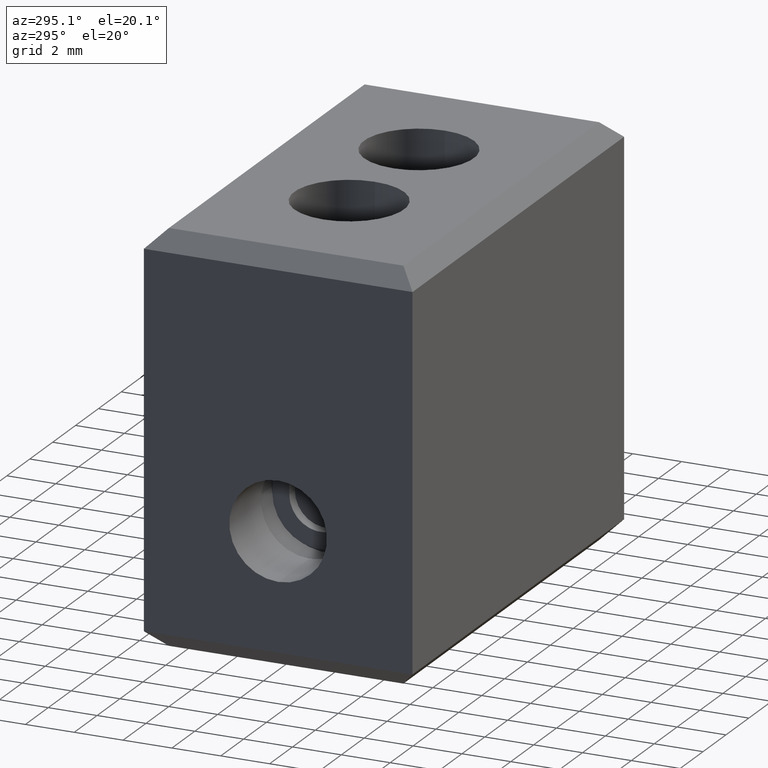
[diagram: clean part render]
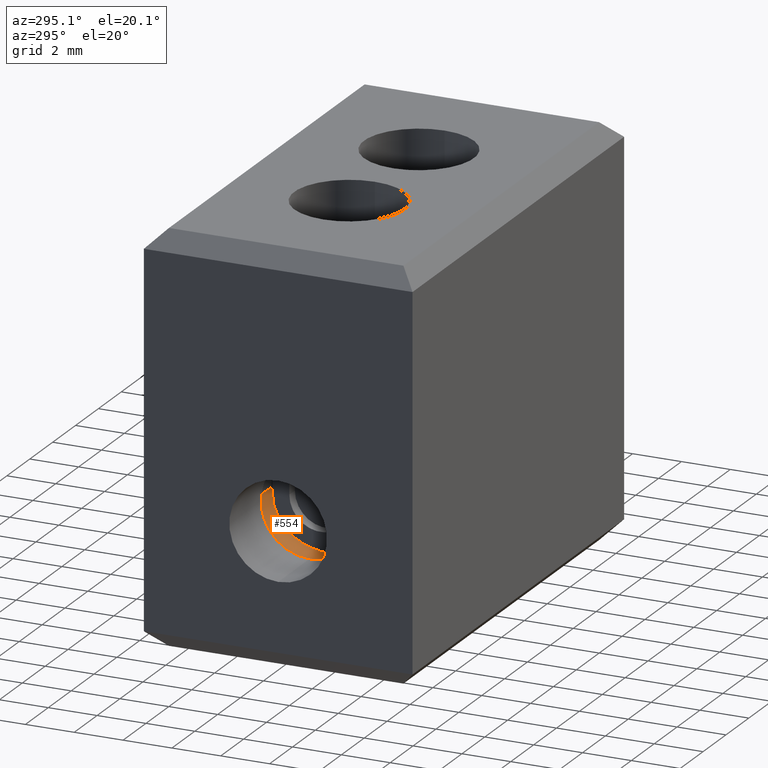
[diagram: same view with one face highlighted and labeled with its STEP entity id]
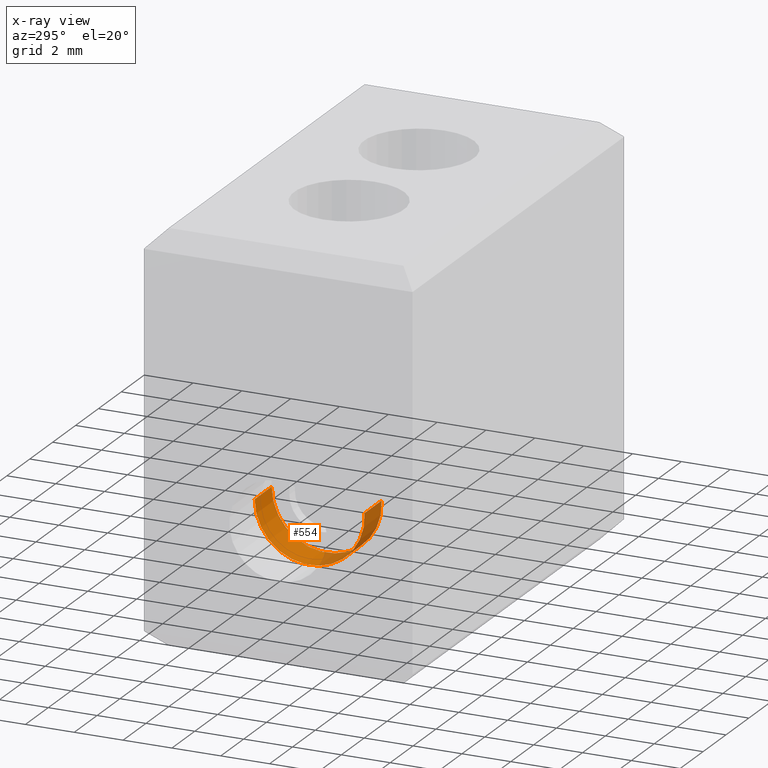
[diagram: x-ray of the same camera — body ghosted, the highlighted face saturated]
A machine part, auxiliary view. The second image highlights one B-rep face of the part: STEP entity #554.
The next image is the same camera in x-ray: the body ghosted, the highlighted face saturated — about 29% of this face is hidden behind the body in this view.
In plain terms, the highlighted cylindrical surface (partial cylindrical patch) has radius 2.2524 mm, axis along (-1, 0, 0).
Its self-contained STEP definition (entity closure, byte-faithful):
#31 = VERTEX_POINT ( 'NONE', #2143 ) ;
#36 = VERTEX_POINT ( 'NONE', #2187 ) ;
#113 = EDGE_LOOP ( 'NONE', ( #212, #230, #220, #233 ) ) ;
#127 = VERTEX_POINT ( 'NONE', #2236 ) ;
#182 = VERTEX_POINT ( 'NONE', #2218 ) ;
#212 = ORIENTED_EDGE ( 'NONE', *, *, #372, .F. ) ;
#220 = ORIENTED_EDGE ( 'NONE', *, *, #371, .F. ) ;
#230 = ORIENTED_EDGE ( 'NONE', *, *, #331, .T. ) ;
#233 = ORIENTED_EDGE ( 'NONE', *, *, #359, .F. ) ;
#331 = EDGE_CURVE ( 'NONE', #182, #36, #2244, .T. ) ;
#359 = EDGE_CURVE ( 'NONE', #127, #31, #2311, .T. ) ;
#371 = EDGE_CURVE ( 'NONE', #31, #36, #1038, .T. ) ;
#372 = EDGE_CURVE ( 'NONE', #182, #127, #1035, .T. ) ;
#554 = ADVANCED_FACE ( 'NONE', ( #868 ), #857, .F. ) ;
#857 = CYLINDRICAL_SURFACE ( 'NONE', #1265, 2.252378536806351100 ) ;
#868 = FACE_OUTER_BOUND ( 'NONE', #113, .T. ) ;
#872 = CARTESIAN_POINT ( 'NONE',  ( 25.97575932689588600, 5.502552612669742200, 5.502378536806437700 ) ) ;
#873 = DIRECTION ( 'NONE',  ( -1.000000000000000000, 0.0000000000000000000, 0.0000000000000000000 ) ) ;
#876 = DIRECTION ( 'NONE',  ( 0.0000000000000000000, 0.0000000000000000000, 1.000000000000000000 ) ) ;
#1000 = VECTOR ( 'NONE', #2217, 1000.000000000000000 ) ;
#1029 = AXIS2_PLACEMENT_3D ( 'NONE', #2347, #2350, #2385 ) ;
#1035 = CIRCLE ( 'NONE', #1043, 2.252378536806351100 ) ;
#1036 = VECTOR ( 'NONE', #2312, 1000.000000000000000 ) ;
#1038 = CIRCLE ( 'NONE', #1029, 2.252378536806351100 ) ;
#1043 = AXIS2_PLACEMENT_3D ( 'NONE', #2373, #2375, #2391 ) ;
#1265 = AXIS2_PLACEMENT_3D ( 'NONE', #872, #873, #876 ) ;
#2143 = CARTESIAN_POINT ( 'NONE',  ( -5.024240673103808100, 3.254931149475837100, 5.648689272080336100 ) ) ;
#2187 = CARTESIAN_POINT ( 'NONE',  ( -5.024240673103808100, 7.754931149476007600, 5.502378536806437700 ) ) ;
#2217 = DIRECTION ( 'NONE',  ( -1.000000000000000000, 0.0000000000000000000, 0.0000000000000000000 ) ) ;
#2218 = CARTESIAN_POINT ( 'NONE',  ( -3.537617578726982800, 7.754931149476007600, 5.502378536806437700 ) ) ;
#2236 = CARTESIAN_POINT ( 'NONE',  ( -3.537617578726982800, 3.254931149475837100, 5.648689272080336100 ) ) ;
#2244 = LINE ( 'NONE', #2254, #1000 ) ;
#2254 = CARTESIAN_POINT ( 'NONE',  ( 25.97575932689588600, 7.754931149476007600, 5.502378536806437700 ) ) ;
#2311 = LINE ( 'NONE', #2320, #1036 ) ;
#2312 = DIRECTION ( 'NONE',  ( -1.000000000000000000, 0.0000000000000000000, 0.0000000000000000000 ) ) ;
#2320 = CARTESIAN_POINT ( 'NONE',  ( 25.97575932689588600, 3.254931149475837100, 5.648689272080336100 ) ) ;
#2347 = CARTESIAN_POINT ( 'NONE',  ( -5.024240673103808100, 5.502552612669742200, 5.502378536806437700 ) ) ;
#2350 = DIRECTION ( 'NONE',  ( 1.000000000000000000, -0.0000000000000000000, -0.0000000000000000000 ) ) ;
#2373 = CARTESIAN_POINT ( 'NONE',  ( -3.537617578726982800, 5.502552612669742200, 5.502378536806437700 ) ) ;
#2375 = DIRECTION ( 'NONE',  ( -1.000000000000000000, -0.0000000000000000000, -1.005910077606673700E-016 ) ) ;
#2385 = DIRECTION ( 'NONE',  ( 0.0000000000000000000, 0.0000000000000000000, 1.000000000000000000 ) ) ;
#2391 = DIRECTION ( 'NONE',  ( -1.925435098529744200E-016, 0.0000000000000000000, 1.000000000000000000 ) ) ;